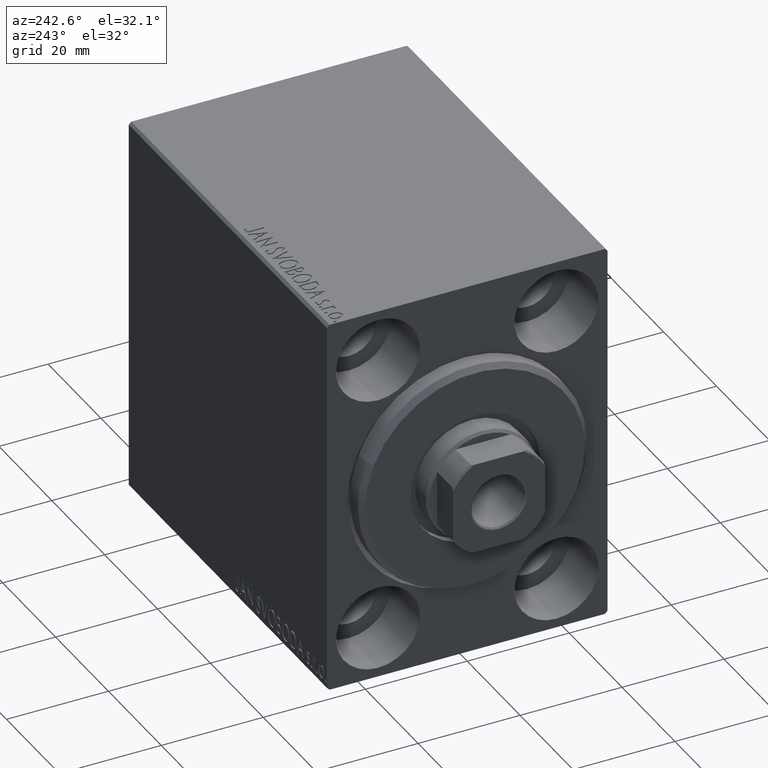
[diagram: clean part render]
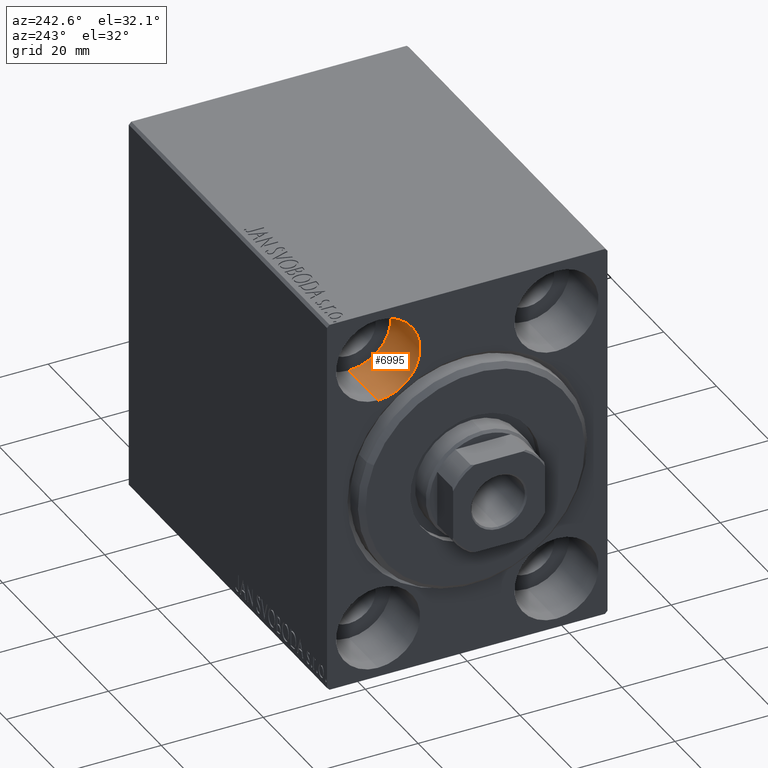
[diagram: same view with one face highlighted and labeled with its STEP entity id]
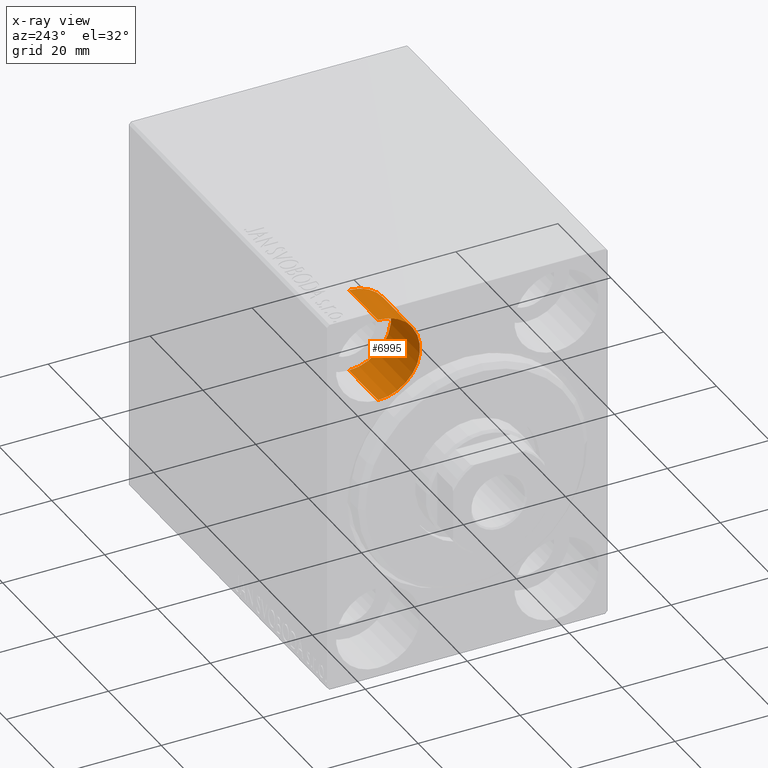
[diagram: x-ray of the same camera — body ghosted, the highlighted face saturated]
A machine part, auxiliary view. The second image highlights one B-rep face of the part: STEP entity #6995.
The next image is the same camera in x-ray: the body ghosted, the highlighted face saturated — about 0% of this face is hidden behind the body in this view.
In plain terms, the highlighted cylindrical surface (partial cylindrical patch) has radius 8.25 mm, axis along (-1, -0, -0).
Its self-contained STEP definition (entity closure, byte-faithful):
#823 = DIRECTION ( 'NONE',  ( -1.000000000000000000, 0.000000000000000000, 0.000000000000000000 ) ) ;
#2084 = CARTESIAN_POINT ( 'NONE',  ( 0.000000000000000000, 17.50000000000000355, 35.74999999999999289 ) ) ;
#3315 = ORIENTED_EDGE ( 'NONE', *, *, #36511, .T. ) ;
#6735 = AXIS2_PLACEMENT_3D ( 'NONE', #18026, #823, #24191 ) ;
#6995 = ADVANCED_FACE ( 'NONE', ( #23296 ), #33224, .F. ) ;
#7131 = LINE ( 'NONE', #21212, #8079 ) ;
#8079 = VECTOR ( 'NONE', #40617, 1000.000000000000000 ) ;
#8505 = DIRECTION ( 'NONE',  ( -1.000000000000000000, -0.000000000000000000, -0.000000000000000000 ) ) ;
#9063 = VERTEX_POINT ( 'NONE', #31094 ) ;
#10540 = EDGE_CURVE ( 'NONE', #36306, #19146, #25032, .T. ) ;
#11558 = DIRECTION ( 'NONE',  ( -1.000000000000000000, 0.000000000000000000, 0.000000000000000000 ) ) ;
#12026 = CIRCLE ( 'NONE', #19769, 8.249999999999992895 ) ;
#13776 = CIRCLE ( 'NONE', #6735, 8.249999999999992895 ) ;
#14908 = CARTESIAN_POINT ( 'NONE',  ( 11.00000000000000000, 17.50000000000000355, 35.74999999999999289 ) ) ;
#16309 = CARTESIAN_POINT ( 'NONE',  ( 11.00000000000000000, 17.50000000000000355, 19.25000000000000000 ) ) ;
#16888 = VECTOR ( 'NONE', #8505, 1000.000000000000000 ) ;
#18026 = CARTESIAN_POINT ( 'NONE',  ( 0.000000000000000000, 17.50000000000000355, 27.49999999999999645 ) ) ;
#18631 = VERTEX_POINT ( 'NONE', #16309 ) ;
#19038 = CARTESIAN_POINT ( 'NONE',  ( 11.00000000000000000, 17.50000000000000355, 27.49999999999999645 ) ) ;
#19146 = VERTEX_POINT ( 'NONE', #2084 ) ;
#19769 = AXIS2_PLACEMENT_3D ( 'NONE', #19038, #11558, #32052 ) ;
#19952 = EDGE_CURVE ( 'NONE', #18631, #36306, #12026, .T. ) ;
#20209 = DIRECTION ( 'NONE',  ( -1.000000000000000000, -0.000000000000000000, -0.000000000000000000 ) ) ;
#20431 = ORIENTED_EDGE ( 'NONE', *, *, #10540, .F. ) ;
#21212 = CARTESIAN_POINT ( 'NONE',  ( 11.00000000000000000, 17.50000000000000355, 19.25000000000000000 ) ) ;
#22432 = AXIS2_PLACEMENT_3D ( 'NONE', #33657, #20209, #40477 ) ;
#23296 = FACE_OUTER_BOUND ( 'NONE', #33373, .T. ) ;
#23977 = CARTESIAN_POINT ( 'NONE',  ( 11.00000000000000000, 17.50000000000000355, 35.74999999999999289 ) ) ;
#24191 = DIRECTION ( 'NONE',  ( 0.000000000000000000, 0.000000000000000000, 1.000000000000000000 ) ) ;
#25032 = LINE ( 'NONE', #14908, #16888 ) ;
#31094 = CARTESIAN_POINT ( 'NONE',  ( 0.000000000000000000, 17.50000000000000355, 19.25000000000000000 ) ) ;
#32052 = DIRECTION ( 'NONE',  ( 0.000000000000000000, 0.000000000000000000, 1.000000000000000000 ) ) ;
#33224 = CYLINDRICAL_SURFACE ( 'NONE', #22432, 8.249999999999992895 ) ;
#33373 = EDGE_LOOP ( 'NONE', ( #37837, #3315, #38909, #20431 ) ) ;
#33657 = CARTESIAN_POINT ( 'NONE',  ( 11.00000000000000000, 17.50000000000000355, 27.49999999999999645 ) ) ;
#36306 = VERTEX_POINT ( 'NONE', #23977 ) ;
#36511 = EDGE_CURVE ( 'NONE', #18631, #9063, #7131, .T. ) ;
#37837 = ORIENTED_EDGE ( 'NONE', *, *, #19952, .F. ) ;
#38491 = EDGE_CURVE ( 'NONE', #9063, #19146, #13776, .T. ) ;
#38909 = ORIENTED_EDGE ( 'NONE', *, *, #38491, .T. ) ;
#40477 = DIRECTION ( 'NONE',  ( 0.000000000000000000, 0.000000000000000000, 1.000000000000000000 ) ) ;
#40617 = DIRECTION ( 'NONE',  ( -1.000000000000000000, -0.000000000000000000, -0.000000000000000000 ) ) ;